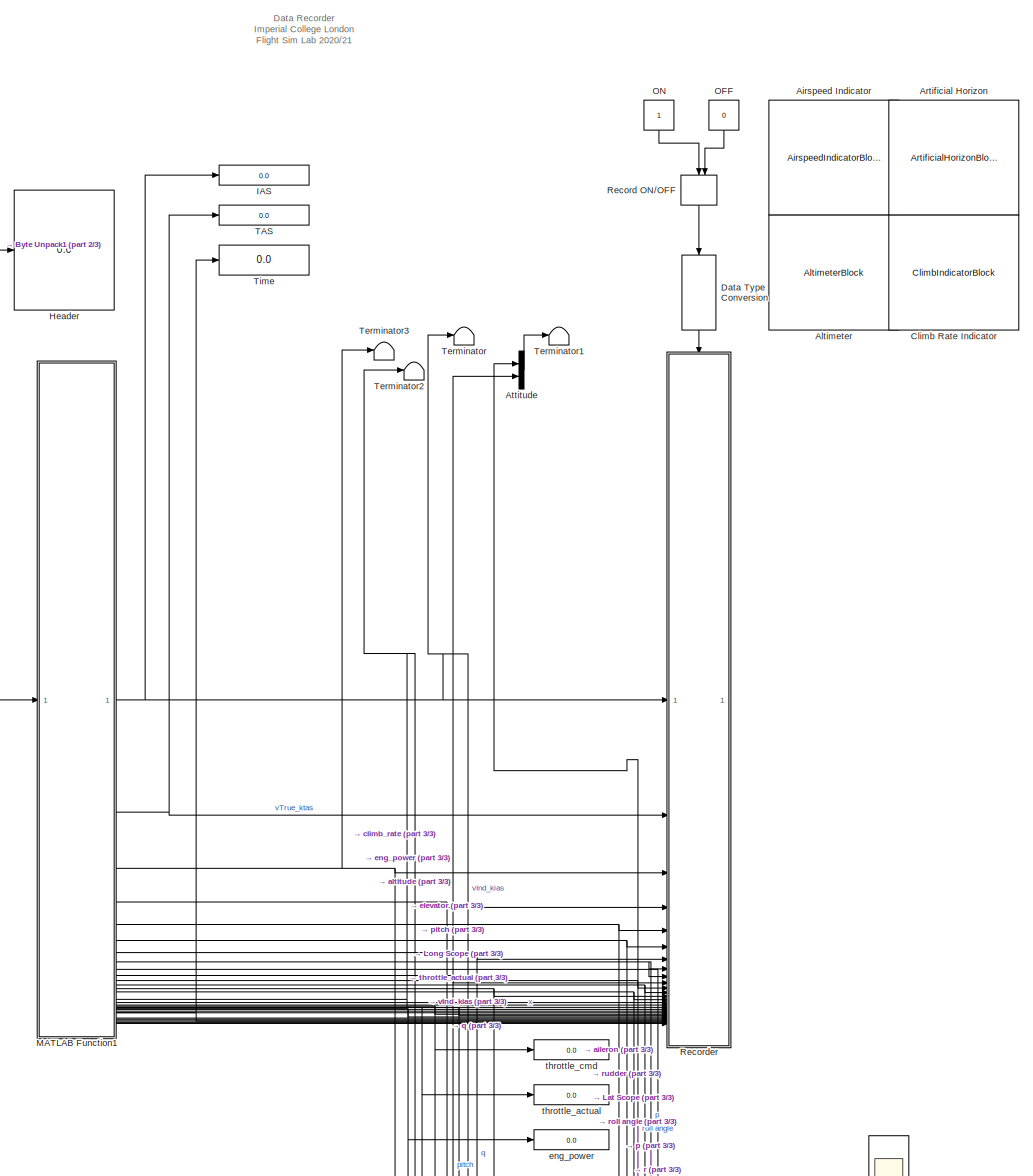
[diagram: root canvas - part 1/3, top center region]
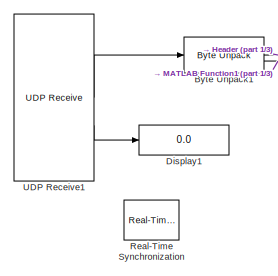
[diagram: root canvas - part 2/3, top left region]
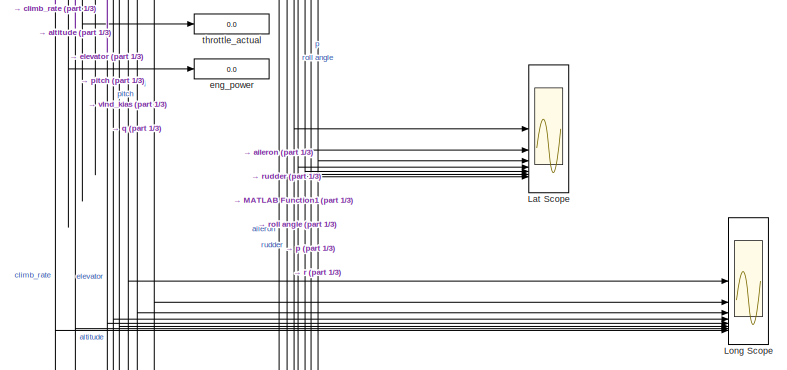
[diagram: root canvas - part 3/3, bottom right region]
MODEL slx_7a1e13326a8e
KIND model
CONFIG AbsTol = auto
CONFIG EnableMultiTasking = off
CONFIG FixedStep = auto
CONFIG InitFcn = my_callback
CONFIG MaxStep = auto
CONFIG MinStep = auto
CONFIG RelTol = 1e-3
CONFIG SampleTimeConstraint = Unconstrained
CONFIG SolverName = VariableStepAuto
CONFIG StartTime = 0.0
CONFIG StopTime = inf  
BLOCK [AirspeedIndicatorBlock] Airspeed Indicator
  ScaleMax = 450
  ScaleMin = 0
BLOCK [AltimeterBlock] Altimeter
BLOCK [ArtificialHorizonBlock] Artificial Horizon
BLOCK [Mux] Attitude
  DisplayOption = bar
  Inputs = 2
BLOCK [Reference] Byte Unpack1  REF=etargetslib/Byte Unpack
  SourceBlock = etargetslib/Byte Unpack
  SourceType = Byte Unpack
BLOCK [ClimbIndicatorBlock] Climb Rate Indicator
BLOCK [DataTypeConversion] Data Type Conversion
  NameLocation = left
  OutDataTypeStr = boolean
  RndMeth = Floor
  SaturateOnIntegerOverflow = off
BLOCK [Display] Display1
  Decimation = 1
BLOCK [Display] Header
  Decimation = 1
BLOCK [Display] IAS
  Decimation = 1
BLOCK [Scope] Lat Scope
  Floating = off
  NumInputPorts = 7
  ScopeSpecificationString = Simulink.scopes.TimeScopeBlockCfg('CurrentConfiguration', extmgr.ConfigurationSet(extmgr.Configuration('Core','General UI',true),extmgr.Configuration('Core','Source UI',true),extmgr.Configuration('Sources','WiredSimulink',true,'DataLoggingVariableName','ScopeData2','SampleTime','0.0125'),extmgr.Configuration('Visuals','Time Domain',true,'SerializedDisplays',{struct('MinYLimReal','-20','MaxYLimReal...<+7077ch>
BLOCK [Scope] Long Scope
  Floating = off
  NumInputPorts = 8
  ScopeSpecificationString = Simulink.scopes.TimeScopeBlockCfg('CurrentConfiguration', extmgr.ConfigurationSet(extmgr.Configuration('Core','General UI',true),extmgr.Configuration('Core','Source UI',true),extmgr.Configuration('Sources','WiredSimulink',true,'DataLoggingVariableName','ScopeData1','SampleTime','0.0125'),extmgr.Configuration('Visuals','Time Domain',true,'SerializedDisplays',{struct('MinYLimReal','0','MaxYLimReal',...<+7068ch>
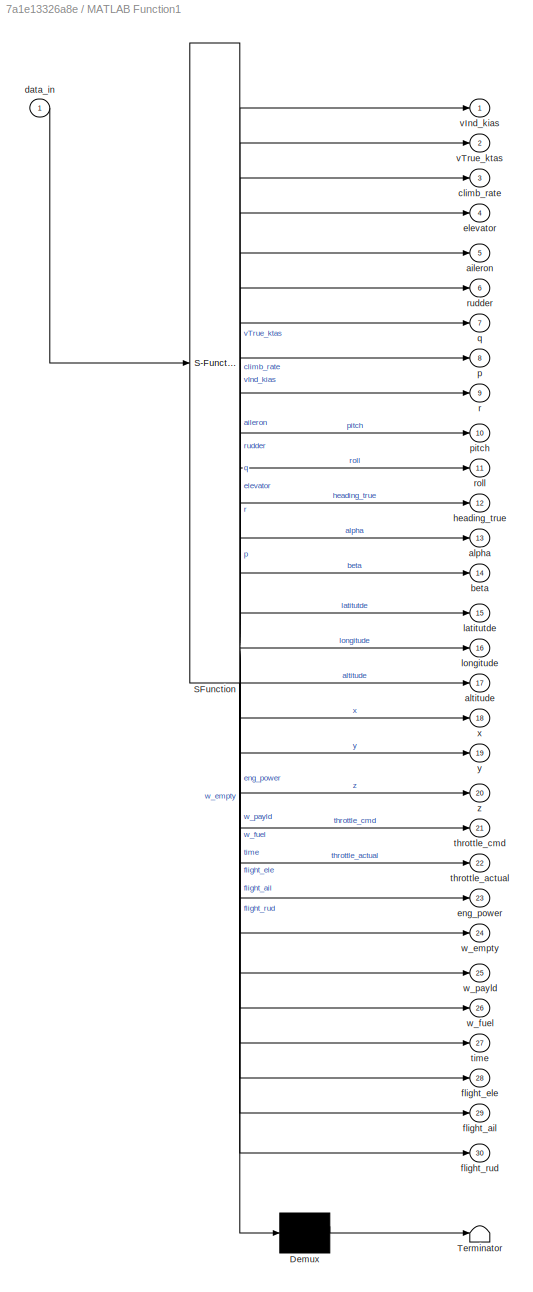
BLOCK [SubSystem] MATLAB Function1
  ErrorFcn = Stateflow.Translate.translate
  PermitHierarchicalResolution = ExplicitOnly
  SFBlockType = MATLAB Function
  TreatAsAtomicUnit = on
BLOCK [Demux] MATLAB Function1/ Demux 
  Outputs = 1
BLOCK [S-Function] MATLAB Function1/ SFunction 
  EnableBusSupport = on
  FunctionName = sf_sfun
  PortCounts = [1 31]
  SFcnIsStateOwnerBlock = off
  SFunctionDeploymentMode = off
  Tag = Stateflow S-Function 3
BLOCK [Terminator] MATLAB Function1/ Terminator 
BLOCK [Outport] MATLAB Function1/aileron
  Port = 5
BLOCK [Outport] MATLAB Function1/alpha
  Port = 13
BLOCK [Outport] MATLAB Function1/altitude
  Port = 17
BLOCK [Outport] MATLAB Function1/beta
  Port = 14
BLOCK [Outport] MATLAB Function1/climb_rate
  Port = 3
BLOCK [Inport] MATLAB Function1/data_in
BLOCK [Outport] MATLAB Function1/elevator
  Port = 4
BLOCK [Outport] MATLAB Function1/eng_power
  Port = 23
BLOCK [Outport] MATLAB Function1/flight_ail
  Port = 29
BLOCK [Outport] MATLAB Function1/flight_ele
  Port = 28
BLOCK [Outport] MATLAB Function1/flight_rud
  Port = 30
BLOCK [Outport] MATLAB Function1/heading_true
  Port = 12
BLOCK [Outport] MATLAB Function1/latitutde
  Port = 15
BLOCK [Outport] MATLAB Function1/longitude
  Port = 16
BLOCK [Outport] MATLAB Function1/p
  Port = 8
BLOCK [Outport] MATLAB Function1/pitch
  Port = 10
BLOCK [Outport] MATLAB Function1/q
  Port = 7
BLOCK [Outport] MATLAB Function1/r
  Port = 9
BLOCK [Outport] MATLAB Function1/roll
  Port = 11
BLOCK [Outport] MATLAB Function1/rudder
  Port = 6
BLOCK [Outport] MATLAB Function1/throttle_actual
  Port = 22
BLOCK [Outport] MATLAB Function1/throttle_cmd
  Port = 21
  VectorParamsAs1DForOutWhenUnconnected = off
BLOCK [Outport] MATLAB Function1/time
  Port = 27
BLOCK [Outport] MATLAB Function1/vInd_kias
BLOCK [Outport] MATLAB Function1/vTrue_ktas
  Port = 2
BLOCK [Outport] MATLAB Function1/w_empty
  Port = 24
BLOCK [Outport] MATLAB Function1/w_fuel
  Port = 26
BLOCK [Outport] MATLAB Function1/w_payld
  Port = 25
BLOCK [Outport] MATLAB Function1/x
  Port = 18
BLOCK [Outport] MATLAB Function1/y
  Port = 19
BLOCK [Outport] MATLAB Function1/z
  Port = 20
BLOCK [Constant] OFF
  NameLocation = left
  Value = 0
BLOCK [Constant] ON
  NameLocation = left
BLOCK [Reference] Real-Time Synchronization  REF=sldrtlib/Real-Time
Synchronization
  SourceBlock = sldrtlib/Real-Time\nSynchronization
  SourceType = Simulink Desktop Real-Time Synchronization
BLOCK [ManualSwitch] Record ON//OFF
  CurrentSetting = 0
  NameLocation = left
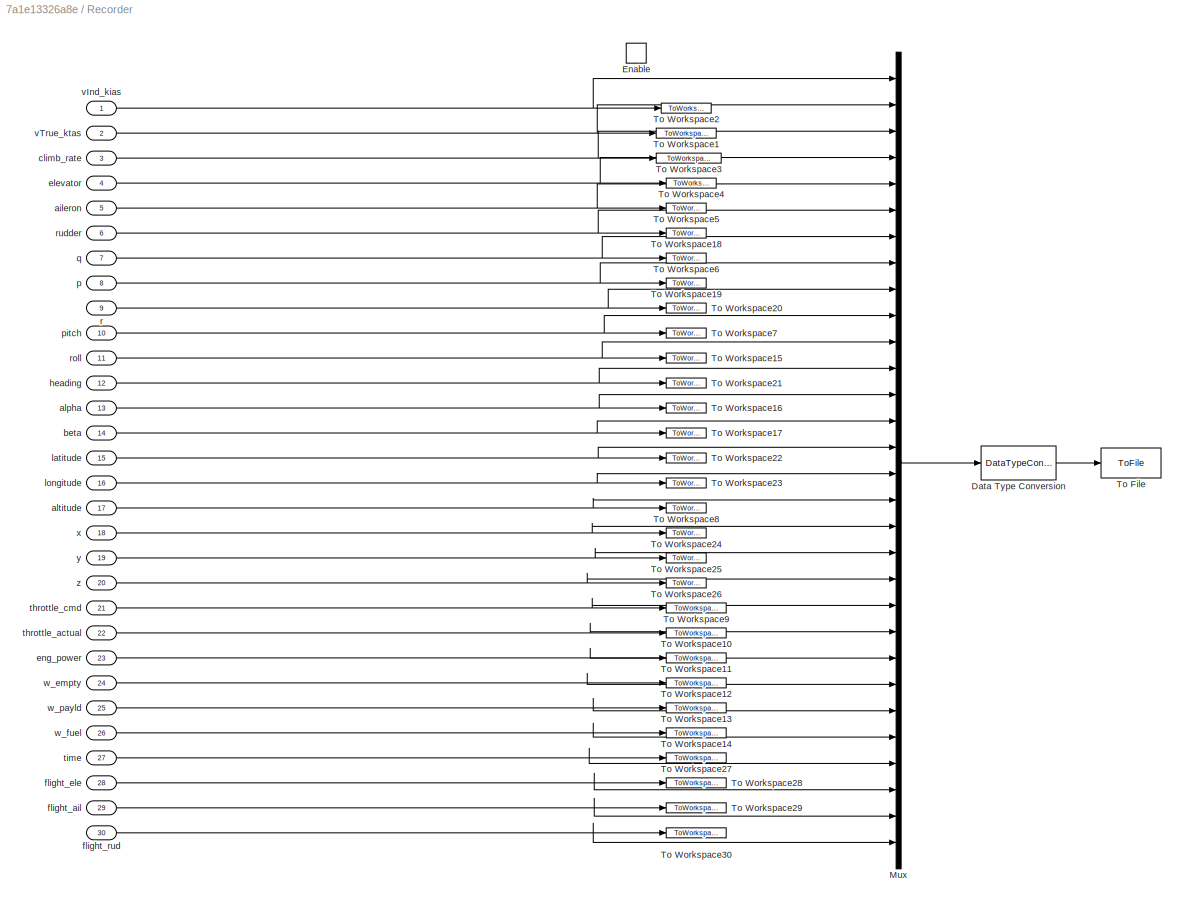
BLOCK [SubSystem] Recorder
BLOCK [DataTypeConversion] Recorder/Data Type Conversion
  OutDataTypeStr = double
  RndMeth = Floor
  SaturateOnIntegerOverflow = off
BLOCK [EnablePort] Recorder/Enable
BLOCK [Mux] Recorder/Mux
  DisplayOption = bar
  Inputs = 30
BLOCK [ToFile] Recorder/To File
  Filename = FlightDynLabPt1_2025-02-10_15-20-45.mat
  MatrixName = data
  SaveFormat = Timeseries
BLOCK [ToWorkspace] Recorder/To Workspace1
  FixptAsFi = on
  MaxDataPoints = inf
  SampleTime = -1
  VariableName = vTrue_ktas
BLOCK [ToWorkspace] Recorder/To Workspace10
  FixptAsFi = on
  MaxDataPoints = inf
  SampleTime = -1
  VariableName = throttle_actual
BLOCK [ToWorkspace] Recorder/To Workspace11
  FixptAsFi = on
  MaxDataPoints = inf
  SampleTime = -1
  VariableName = eng_power
BLOCK [ToWorkspace] Recorder/To Workspace12
  FixptAsFi = on
  MaxDataPoints = inf
  SampleTime = -1
  VariableName = w_empty
BLOCK [ToWorkspace] Recorder/To Workspace13
  FixptAsFi = on
  MaxDataPoints = inf
  SampleTime = -1
  VariableName = w_payld
BLOCK [ToWorkspace] Recorder/To Workspace14
  FixptAsFi = on
  MaxDataPoints = inf
  SampleTime = -1
  VariableName = w_fuel
BLOCK [ToWorkspace] Recorder/To Workspace15
  FixptAsFi = on
  MaxDataPoints = inf
  SampleTime = -1
  VariableName = roll
BLOCK [ToWorkspace] Recorder/To Workspace16
  FixptAsFi = on
  MaxDataPoints = inf
  SampleTime = -1
  VariableName = alpha
BLOCK [ToWorkspace] Recorder/To Workspace17
  FixptAsFi = on
  MaxDataPoints = inf
  SampleTime = -1
  VariableName = beta
BLOCK [ToWorkspace] Recorder/To Workspace18
  FixptAsFi = on
  MaxDataPoints = inf
  SampleTime = -1
  VariableName = rudder
BLOCK [ToWorkspace] Recorder/To Workspace19
  FixptAsFi = on
  MaxDataPoints = inf
  SampleTime = -1
  VariableName = p
BLOCK [ToWorkspace] Recorder/To Workspace2
  FixptAsFi = on
  MaxDataPoints = inf
  SampleTime = -1
  VariableName = vInd_kias
BLOCK [ToWorkspace] Recorder/To Workspace20
  FixptAsFi = on
  MaxDataPoints = inf
  SampleTime = -1
  VariableName = r
BLOCK [ToWorkspace] Recorder/To Workspace21
  FixptAsFi = on
  MaxDataPoints = inf
  SampleTime = -1
  VariableName = heading
BLOCK [ToWorkspace] Recorder/To Workspace22
  FixptAsFi = on
  MaxDataPoints = inf
  SampleTime = -1
  VariableName = latitude
BLOCK [ToWorkspace] Recorder/To Workspace23
  FixptAsFi = on
  MaxDataPoints = inf
  SampleTime = -1
  VariableName = longitude
BLOCK [ToWorkspace] Recorder/To Workspace24
  FixptAsFi = on
  MaxDataPoints = inf
  SampleTime = -1
  VariableName = x
BLOCK [ToWorkspace] Recorder/To Workspace25
  FixptAsFi = on
  MaxDataPoints = inf
  SampleTime = -1
  VariableName = y
BLOCK [ToWorkspace] Recorder/To Workspace26
  FixptAsFi = on
  MaxDataPoints = inf
  SampleTime = -1
  VariableName = z
BLOCK [ToWorkspace] Recorder/To Workspace27
  FixptAsFi = on
  MaxDataPoints = inf
  SampleTime = -1
  VariableName = time
BLOCK [ToWorkspace] Recorder/To Workspace28
  FixptAsFi = on
  MaxDataPoints = inf
  SampleTime = -1
  VariableName = flight_ele
BLOCK [ToWorkspace] Recorder/To Workspace29
  FixptAsFi = on
  MaxDataPoints = inf
  SampleTime = -1
  VariableName = flight_ail
BLOCK [ToWorkspace] Recorder/To Workspace3
  FixptAsFi = on
  MaxDataPoints = inf
  SampleTime = -1
  VariableName = climb_rate
BLOCK [ToWorkspace] Recorder/To Workspace30
  FixptAsFi = on
  MaxDataPoints = inf
  SampleTime = -1
  VariableName = flight_rud
BLOCK [ToWorkspace] Recorder/To Workspace4
  FixptAsFi = on
  MaxDataPoints = inf
  SampleTime = -1
  VariableName = elevator
BLOCK [ToWorkspace] Recorder/To Workspace5
  FixptAsFi = on
  MaxDataPoints = inf
  SampleTime = -1
  VariableName = aileron
BLOCK [ToWorkspace] Recorder/To Workspace6
  FixptAsFi = on
  MaxDataPoints = inf
  SampleTime = -1
  VariableName = q
BLOCK [ToWorkspace] Recorder/To Workspace7
  FixptAsFi = on
  MaxDataPoints = inf
  SampleTime = -1
  VariableName = pitch
BLOCK [ToWorkspace] Recorder/To Workspace8
  FixptAsFi = on
  MaxDataPoints = inf
  SampleTime = -1
  VariableName = altitude
BLOCK [ToWorkspace] Recorder/To Workspace9
  FixptAsFi = on
  MaxDataPoints = inf
  SampleTime = -1
  VariableName = throttle_cmd
BLOCK [Inport] Recorder/aileron
  Port = 5
BLOCK [Inport] Recorder/alpha
  Port = 13
BLOCK [Inport] Recorder/altitude
  Port = 17
BLOCK [Inport] Recorder/beta
  Port = 14
BLOCK [Inport] Recorder/climb_rate
  Port = 3
BLOCK [Inport] Recorder/elevator
  Port = 4
BLOCK [Inport] Recorder/eng_power
  Port = 23
BLOCK [Inport] Recorder/flight_ail
  Port = 29
BLOCK [Inport] Recorder/flight_ele
  Port = 28
BLOCK [Inport] Recorder/flight_rud
  Port = 30
BLOCK [Inport] Recorder/heading
  Port = 12
BLOCK [Inport] Recorder/latitude
  Port = 15
BLOCK [Inport] Recorder/longitude
  Port = 16
BLOCK [Inport] Recorder/p
  Port = 8
BLOCK [Inport] Recorder/pitch
  Port = 10
BLOCK [Inport] Recorder/q
  Port = 7
BLOCK [Inport] Recorder/r
  Port = 9
BLOCK [Inport] Recorder/roll
  Port = 11
BLOCK [Inport] Recorder/rudder
  Port = 6
BLOCK [Inport] Recorder/throttle_actual
  Port = 22
BLOCK [Inport] Recorder/throttle_cmd
  Port = 21
BLOCK [Inport] Recorder/time
  Port = 27
BLOCK [Inport] Recorder/vInd_kias
BLOCK [Inport] Recorder/vTrue_ktas
  Port = 2
BLOCK [Inport] Recorder/w_empty
  Port = 24
BLOCK [Inport] Recorder/w_fuel
  Port = 26
BLOCK [Inport] Recorder/w_payld
  Port = 25
BLOCK [Inport] Recorder/x
  Port = 18
BLOCK [Inport] Recorder/y
  Port = 19
BLOCK [Inport] Recorder/z
  Port = 20
BLOCK [Display] TAS
  Decimation = 1
BLOCK [Terminator] Terminator
BLOCK [Terminator] Terminator1
BLOCK [Terminator] Terminator2
BLOCK [Terminator] Terminator3
BLOCK [Display] Time
  Decimation = 1
BLOCK [Reference] UDP Receive1  REF=dspnetwork/UDP Receive
  SourceBlock = dspnetwork/UDP Receive
  SourceType = UDP Receive
BLOCK [Display] eng_power
  Decimation = 1
BLOCK [Display] throttle_actual
  Decimation = 1
BLOCK [Display] throttle_cmd
  Decimation = 1
ANNOTATION (root): Data Recorder Imperial College London Flight Sim Lab 2020/21
LINE Attitude:1 -> Terminator1:1
LINE Byte Unpack1:1 -> Header:1
LINE Byte Unpack1:2 -> MATLAB Function1:1
LINE Data Type Conversion:1 -> Recorder:enable
NET MATLAB Function1:1 -> IAS:1, Long Scope:1, Recorder:1, Terminator:1
NET MATLAB Function1:10 -> Attitude:2, Long Scope:4, Recorder:10
NET MATLAB Function1:11 -> Attitude:1, Lat Scope:4, Recorder:11
NET MATLAB Function1:12 -> Lat Scope:5, Recorder:12
NET MATLAB Function1:13 -> Long Scope:2, Recorder:13
NET MATLAB Function1:14 -> Lat Scope:1, Recorder:14
LINE MATLAB Function1:15 -> Recorder:15
LINE MATLAB Function1:16 -> Recorder:16
NET MATLAB Function1:17 -> Long Scope:7, Recorder:17, Terminator2:1
LINE MATLAB Function1:18 -> Recorder:18
LINE MATLAB Function1:19 -> Recorder:19
NET MATLAB Function1:2 -> Recorder:2, TAS:1
LINE MATLAB Function1:20 -> Recorder:20
NET MATLAB Function1:21 -> Recorder:21, throttle_cmd:1
NET MATLAB Function1:22 -> Long Scope:6, Recorder:22, throttle_actual:1
NET MATLAB Function1:23 -> Recorder:23, eng_power:1
LINE MATLAB Function1:24 -> Recorder:24
LINE MATLAB Function1:25 -> Recorder:25
LINE MATLAB Function1:26 -> Recorder:26
NET MATLAB Function1:27 -> Recorder:27, Time:1
LINE MATLAB Function1:28 -> Recorder:28
LINE MATLAB Function1:29 -> Recorder:29
NET MATLAB Function1:3 -> Long Scope:8, Recorder:3, Terminator3:1
LINE MATLAB Function1:30 -> Recorder:30
NET MATLAB Function1:4 -> Long Scope:5, Recorder:4
NET MATLAB Function1:5 -> Lat Scope:6, Recorder:5
NET MATLAB Function1:6 -> Lat Scope:7, Recorder:6
NET MATLAB Function1:7 -> Long Scope:3, Recorder:7
NET MATLAB Function1:8 -> Lat Scope:2, Recorder:8
NET MATLAB Function1:9 -> Lat Scope:3, Recorder:9
LINE OFF:1 -> Record ON//OFF:2
LINE ON:1 -> Record ON//OFF:1
LINE Record ON//OFF:1 -> Data Type Conversion:1
LINE Recorder/Data Type Conversion:1 -> Recorder/To File:1
LINE Recorder/Mux:1 -> Recorder/Data Type Conversion:1
NET Recorder/aileron:1 -> Recorder/Mux:5, Recorder/To Workspace5:1
NET Recorder/alpha:1 -> Recorder/Mux:13, Recorder/To Workspace16:1
NET Recorder/altitude:1 -> Recorder/Mux:17, Recorder/To Workspace8:1
NET Recorder/beta:1 -> Recorder/Mux:14, Recorder/To Workspace17:1
NET Recorder/climb_rate:1 -> Recorder/Mux:3, Recorder/To Workspace3:1
NET Recorder/elevator:1 -> Recorder/Mux:4, Recorder/To Workspace4:1
NET Recorder/eng_power:1 -> Recorder/Mux:23, Recorder/To Workspace11:1
NET Recorder/flight_ail:1 -> Recorder/Mux:29, Recorder/To Workspace29:1
NET Recorder/flight_ele:1 -> Recorder/Mux:28, Recorder/To Workspace28:1
NET Recorder/flight_rud:1 -> Recorder/Mux:30, Recorder/To Workspace30:1
NET Recorder/heading:1 -> Recorder/Mux:12, Recorder/To Workspace21:1
NET Recorder/latitude:1 -> Recorder/Mux:15, Recorder/To Workspace22:1
NET Recorder/longitude:1 -> Recorder/Mux:16, Recorder/To Workspace23:1
NET Recorder/p:1 -> Recorder/Mux:8, Recorder/To Workspace19:1
NET Recorder/pitch:1 -> Recorder/Mux:10, Recorder/To Workspace7:1
NET Recorder/q:1 -> Recorder/Mux:7, Recorder/To Workspace6:1
NET Recorder/r:1 -> Recorder/Mux:9, Recorder/To Workspace20:1
NET Recorder/roll:1 -> Recorder/Mux:11, Recorder/To Workspace15:1
NET Recorder/rudder:1 -> Recorder/Mux:6, Recorder/To Workspace18:1
NET Recorder/throttle_actual:1 -> Recorder/Mux:22, Recorder/To Workspace10:1
NET Recorder/throttle_cmd:1 -> Recorder/Mux:21, Recorder/To Workspace9:1
NET Recorder/time:1 -> Recorder/Mux:27, Recorder/To Workspace27:1
NET Recorder/vInd_kias:1 -> Recorder/Mux:1, Recorder/To Workspace2:1
NET Recorder/vTrue_ktas:1 -> Recorder/Mux:2, Recorder/To Workspace1:1
NET Recorder/w_empty:1 -> Recorder/Mux:24, Recorder/To Workspace12:1
NET Recorder/w_fuel:1 -> Recorder/Mux:26, Recorder/To Workspace14:1
NET Recorder/w_payld:1 -> Recorder/Mux:25, Recorder/To Workspace13:1
NET Recorder/x:1 -> Recorder/Mux:18, Recorder/To Workspace24:1
NET Recorder/y:1 -> Recorder/Mux:19, Recorder/To Workspace25:1
NET Recorder/z:1 -> Recorder/Mux:20, Recorder/To Workspace26:1
LINE UDP Receive1:1 -> Byte Unpack1:1
LINE UDP Receive1:2 -> Display1:1
note: NET lines group one-source signal fan-out (src -> all destinations, sorted); 1:1 wires keep LINE
CHART MATLAB Function1 states=1 transitions=1
  STATE_LABEL 'eML_blk_kernel()'
  STATE_LABEL 'SCRIPT:\nfunction [vInd_kias,vTrue_ktas,...\n    climb_rate,...\n    elevator,aileron,rudder,...\n    q,p,r,...\n    pitch, roll, heading_true,...\n    alpha,beta,...\n    latitutde, longitude, altitude,...\n    x,y,z,...\n    throttle_cmd,...\n    throttle_actual,...\n    eng_power,...\n    w_empty,w_payld,w_fuel,...\n    time,...\n    flight_ele,flight_ail,flight_rud] = decoder(data_in)\n frame_rate = data_in(...<+832ch>'
CHART  states=0 transitions=0
